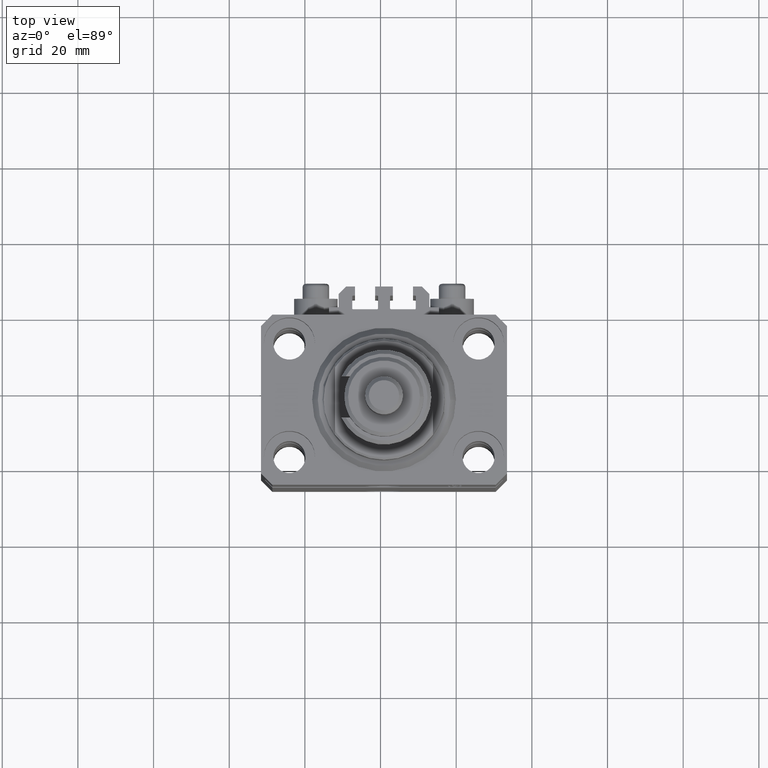
[diagram: clean part render]
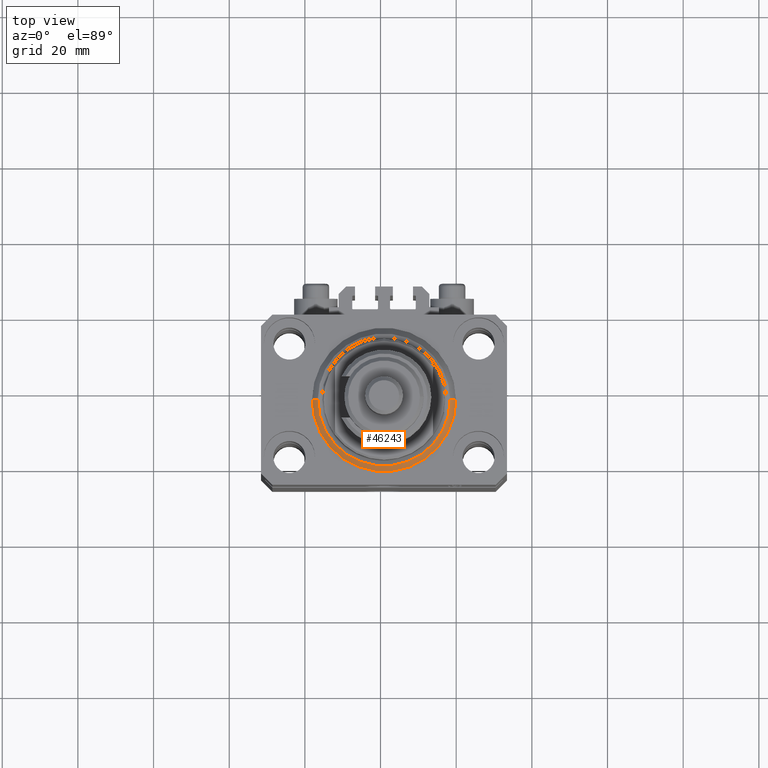
[diagram: same view with one face highlighted and labeled with its STEP entity id]
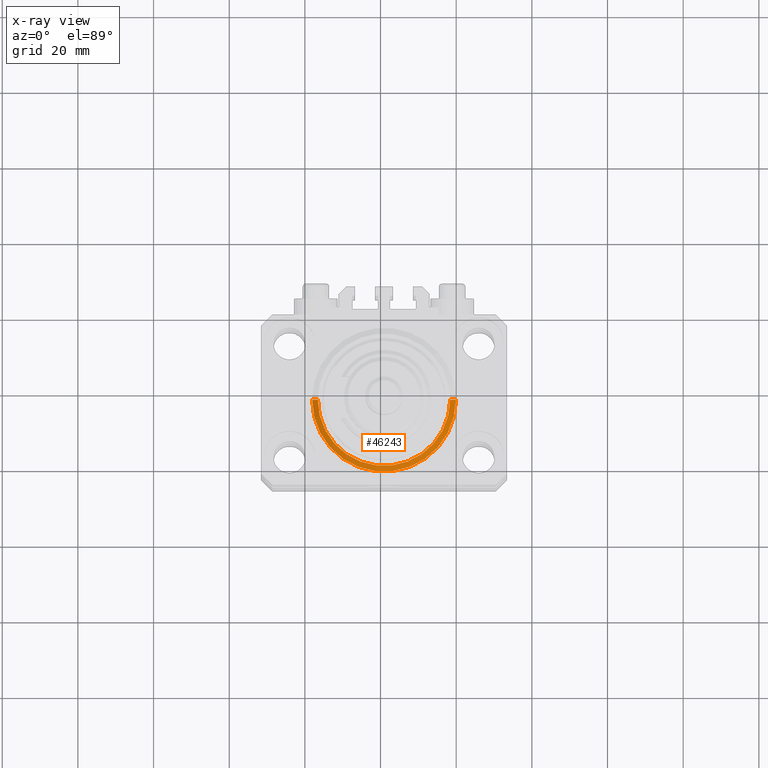
[diagram: x-ray of the same camera — body ghosted, the highlighted face saturated]
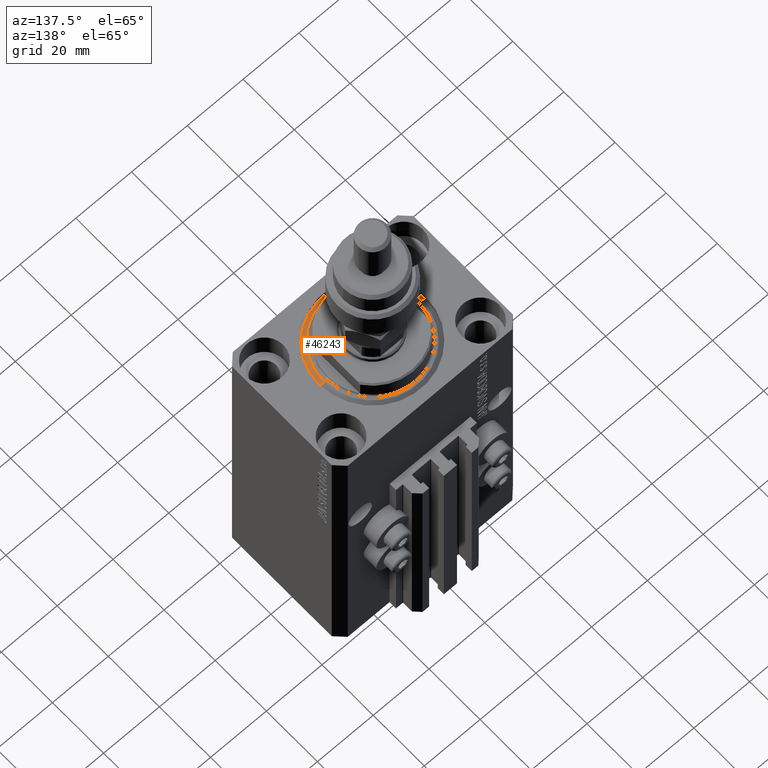
[diagram: same view with one face highlighted and labeled with its STEP entity id]
A machine part, top view. The second image highlights one B-rep face of the part: STEP entity #46243.
The next image is the same camera in x-ray: the body ghosted, the highlighted face saturated — about 0% of this face is hidden behind the body in this view.
A second angle (auxiliary view) of the same face is appended — the face is thin or edge-on in the first view.
In plain terms, the highlighted conical surface has half-angle 45 deg.
Its self-contained STEP definition (entity closure, byte-faithful):
#247 = ORIENTED_EDGE ( 'NONE', *, *, #41210, .T. ) ;
#1155 = VERTEX_POINT ( 'NONE', #11457 ) ;
#4271 = DIRECTION ( 'NONE',  ( 1.000000000000000000, 0.000000000000000000, 0.000000000000000000 ) ) ;
#5102 = DIRECTION ( 'NONE',  ( 0.7071067811865483499, 0.000000000000000000, 0.7071067811865467956 ) ) ;
#6049 = EDGE_CURVE ( 'NONE', #27919, #40260, #29842, .T. ) ;
#6124 = CARTESIAN_POINT ( 'NONE',  ( -19.00000000000000000, 2.326828918379970970E-15, 1.500000000000001332 ) ) ;
#8824 = DIRECTION ( 'NONE',  ( -0.000000000000000000, -0.000000000000000000, 1.000000000000000000 ) ) ;
#11457 = CARTESIAN_POINT ( 'NONE',  ( 17.49999999999999645, 0.000000000000000000, 0.000000000000000000 ) ) ;
#15317 = CIRCLE ( 'NONE', #43551, 19.00000000000000000 ) ;
#15888 = CARTESIAN_POINT ( 'NONE',  ( 0.000000000000000000, 0.000000000000000000, 0.000000000000000000 ) ) ;
#16414 = CARTESIAN_POINT ( 'NONE',  ( 0.000000000000000000, 0.000000000000000000, 1.500000000000001332 ) ) ;
#18651 = EDGE_CURVE ( 'NONE', #1155, #27919, #32583, .T. ) ;
#19201 = VECTOR ( 'NONE', #5102, 1000.000000000000000 ) ;
#19253 = CARTESIAN_POINT ( 'NONE',  ( -19.00000000000000000, 0.000000000000000000, 1.500000000000001332 ) ) ;
#21073 = VECTOR ( 'NONE', #33396, 1000.000000000000000 ) ;
#24226 = DIRECTION ( 'NONE',  ( 1.000000000000000000, 0.000000000000000000, 0.000000000000000000 ) ) ;
#25120 = CARTESIAN_POINT ( 'NONE',  ( -17.49999999999999645, 2.234980408443919215E-15, 0.000000000000000000 ) ) ;
#27443 = AXIS2_PLACEMENT_3D ( 'NONE', #32658, #40497, #45011 ) ;
#27919 = VERTEX_POINT ( 'NONE', #25120 ) ;
#29842 = LINE ( 'NONE', #6124, #21073 ) ;
#31124 = CARTESIAN_POINT ( 'NONE',  ( 19.00000000000000000, 0.000000000000000000, 1.500000000000001332 ) ) ;
#32583 = CIRCLE ( 'NONE', #38997, 17.49999999999999645 ) ;
#32658 = CARTESIAN_POINT ( 'NONE',  ( 0.000000000000000000, 0.000000000000000000, 1.500000000000001332 ) ) ;
#33396 = DIRECTION ( 'NONE',  ( -0.7071067811865483499, 8.659560562354942719E-17, 0.7071067811865467956 ) ) ;
#34482 = VERTEX_POINT ( 'NONE', #46751 ) ;
#35845 = DIRECTION ( 'NONE',  ( -0.000000000000000000, -0.000000000000000000, -1.000000000000000000 ) ) ;
#36590 = EDGE_CURVE ( 'NONE', #40260, #34482, #15317, .T. ) ;
#37044 = ORIENTED_EDGE ( 'NONE', *, *, #36590, .F. ) ;
#37613 = ORIENTED_EDGE ( 'NONE', *, *, #18651, .F. ) ;
#38997 = AXIS2_PLACEMENT_3D ( 'NONE', #15888, #35845, #4271 ) ;
#40260 = VERTEX_POINT ( 'NONE', #19253 ) ;
#40497 = DIRECTION ( 'NONE',  ( -0.000000000000000000, -0.000000000000000000, 1.000000000000000000 ) ) ;
#41150 = EDGE_LOOP ( 'NONE', ( #49460, #37613, #247, #37044 ) ) ;
#41210 = EDGE_CURVE ( 'NONE', #1155, #34482, #46767, .T. ) ;
#41235 = FACE_OUTER_BOUND ( 'NONE', #41150, .T. ) ;
#43551 = AXIS2_PLACEMENT_3D ( 'NONE', #16414, #8824, #24226 ) ;
#45011 = DIRECTION ( 'NONE',  ( 1.000000000000000000, 0.000000000000000000, 0.000000000000000000 ) ) ;
#46243 = ADVANCED_FACE ( 'NONE', ( #41235 ), #48398, .T. ) ;
#46751 = CARTESIAN_POINT ( 'NONE',  ( 19.00000000000000000, 2.326828918379970970E-15, 1.500000000000001332 ) ) ;
#46767 = LINE ( 'NONE', #31124, #19201 ) ;
#48398 = CONICAL_SURFACE ( 'NONE', #27443, 19.00000000000000000, 0.7853981633974492782 ) ;
#49460 = ORIENTED_EDGE ( 'NONE', *, *, #6049, .F. ) ;